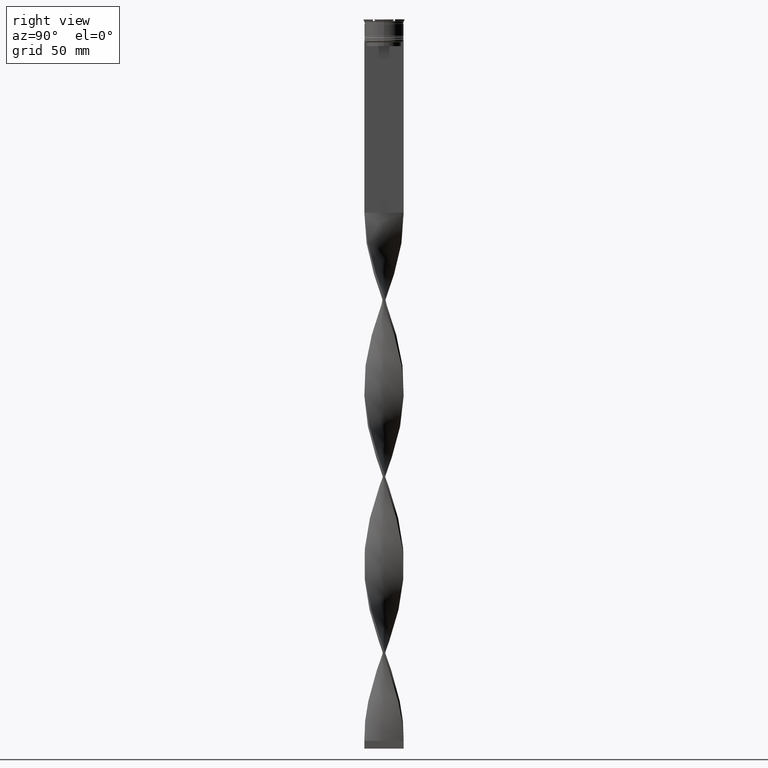
[diagram: clean part render]
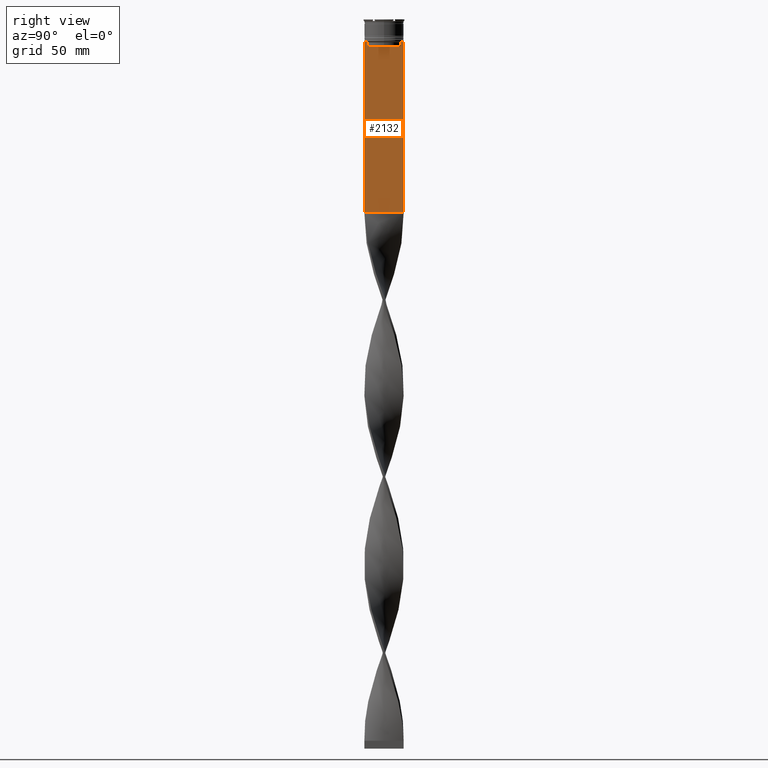
[diagram: same view with one face highlighted and labeled with its STEP entity id]
A machine part, right view. The second image highlights one B-rep face of the part: STEP entity #2132.
In plain terms, the highlighted planar face has unit normal (-1, 0, 0).
Its self-contained STEP definition (entity closure, byte-faithful):
#46 = CARTESIAN_POINT ( 'NONE',  ( 0.7500000000000002220, 12.37729776647553059, -14.00000000000000178 ) ) ;
#56 = DIRECTION ( 'NONE',  ( 0.000000000000000000, -1.000000000000000000, 0.000000000000000000 ) ) ;
#61 = VECTOR ( 'NONE', #675, 1000.000000000000000 ) ;
#79 = ORIENTED_EDGE ( 'NONE', *, *, #1677, .T. ) ;
#157 = CARTESIAN_POINT ( 'NONE',  ( 0.7500000000000002220, -11.04122051801870441, -14.33334204001847567 ) ) ;
#217 = EDGE_CURVE ( 'NONE', #3890, #3883, #2850, .T. ) ;
#251 = VERTEX_POINT ( 'NONE', #46 ) ;
#255 = CARTESIAN_POINT ( 'NONE',  ( 0.7500000000000002220, 11.04122051153452055, -14.33334204648729404 ) ) ;
#323 = EDGE_CURVE ( 'NONE', #1645, #3890, #1042, .T. ) ;
#353 = VERTEX_POINT ( 'NONE', #4059 ) ;
#374 = LINE ( 'NONE', #1735, #1950 ) ;
#425 = VERTEX_POINT ( 'NONE', #1181 ) ;
#429 = VECTOR ( 'NONE', #2139, 1000.000000000000000 ) ;
#435 = LINE ( 'NONE', #4293, #1558 ) ;
#442 = CARTESIAN_POINT ( 'NONE',  ( 0.7500000000000002220, -12.37729776647553059, -14.00000000000000178 ) ) ;
#469 = VERTEX_POINT ( 'NONE', #4037 ) ;
#654 = AXIS2_PLACEMENT_3D ( 'NONE', #2178, #3922, #3572 ) ;
#675 = DIRECTION ( 'NONE',  ( 0.000000000000000000, 0.000000000000000000, -1.000000000000000000 ) ) ;
#683 = CARTESIAN_POINT ( 'NONE',  ( 0.7500000000000002220, 10.87416663473574197, -14.50000000000000000 ) ) ;
#731 = ORIENTED_EDGE ( 'NONE', *, *, #2818, .T. ) ;
#751 = FACE_OUTER_BOUND ( 'NONE', #1650, .T. ) ;
#773 = PLANE ( 'NONE',  #654 ) ;
#778 = VERTEX_POINT ( 'NONE', #2162 ) ;
#854 = VERTEX_POINT ( 'NONE', #442 ) ;
#863 = CARTESIAN_POINT ( 'NONE',  ( 0.7500000000000002220, -11.37530219378809093, -14.00000000000000178 ) ) ;
#895 = DIRECTION ( 'NONE',  ( 0.000000000000000000, -1.000000000000000000, 0.000000000000000000 ) ) ;
#954 = CARTESIAN_POINT ( 'NONE',  ( 0.7500000000000002220, -10.87416663473574197, -14.50000000000000000 ) ) ;
#961 = EDGE_CURVE ( 'NONE', #469, #2232, #435, .T. ) ;
#987 = CARTESIAN_POINT ( 'NONE',  ( 0.7500000000000002220, 11.20826531587977648, -14.16667499681701514 ) ) ;
#1042 = LINE ( 'NONE', #4269, #429 ) ;
#1132 = LINE ( 'NONE', #3283, #3287 ) ;
#1136 = CARTESIAN_POINT ( 'NONE',  ( 0.7500000000000002220, -12.50000000000000000, -123.0000000000000000 ) ) ;
#1181 = CARTESIAN_POINT ( 'NONE',  ( 0.7500000000000002220, 10.87416663473574197, -14.50000000000000000 ) ) ;
#1225 = CARTESIAN_POINT ( 'NONE',  ( 0.7500000000000002220, -12.50000000000000000, -14.00000000000000178 ) ) ;
#1322 = ORIENTED_EDGE ( 'NONE', *, *, #4561, .T. ) ;
#1337 = LINE ( 'NONE', #1685, #61 ) ;
#1446 = LINE ( 'NONE', #3626, #1936 ) ;
#1473 = CARTESIAN_POINT ( 'NONE',  ( 0.7500000000000002220, -10.87416663473574019, -17.00000000000000000 ) ) ;
#1485 = DIRECTION ( 'NONE',  ( -0.000000000000000000, -0.000000000000000000, 1.000000000000000000 ) ) ;
#1495 = VERTEX_POINT ( 'NONE', #4554 ) ;
#1558 = VECTOR ( 'NONE', #56, 1000.000000000000000 ) ;
#1569 = CARTESIAN_POINT ( 'NONE',  ( 0.7500000000000002220, -12.50000000000000000, -123.0000000000000000 ) ) ;
#1645 = VERTEX_POINT ( 'NONE', #2492 ) ;
#1650 = EDGE_LOOP ( 'NONE', ( #2619, #1322, #1655, #2233, #2084, #3333, #79, #2522, #3981, #3578, #3658, #731 ) ) ;
#1655 = ORIENTED_EDGE ( 'NONE', *, *, #3546, .T. ) ;
#1677 = EDGE_CURVE ( 'NONE', #1495, #854, #1446, .T. ) ;
#1685 = CARTESIAN_POINT ( 'NONE',  ( 0.7500000000000002220, 10.87416663473574197, 0.000000000000000000 ) ) ;
#1735 = CARTESIAN_POINT ( 'NONE',  ( 0.7500000000000002220, -12.50000000000000000, -14.00000000000000178 ) ) ;
#1912 = VERTEX_POINT ( 'NONE', #2228 ) ;
#1936 = VECTOR ( 'NONE', #4360, 1000.000000000000000 ) ;
#1950 = VECTOR ( 'NONE', #2457, 1000.000000000000000 ) ;
#1952 = VECTOR ( 'NONE', #3435, 1000.000000000000000 ) ;
#2084 = ORIENTED_EDGE ( 'NONE', *, *, #4275, .T. ) ;
#2132 = ADVANCED_FACE ( 'NONE', ( #751 ), #773, .F. ) ;
#2139 = DIRECTION ( 'NONE',  ( 0.000000000000000000, 0.000000000000000000, -1.000000000000000000 ) ) ;
#2156 = VECTOR ( 'NONE', #4312, 1000.000000000000000 ) ;
#2162 = CARTESIAN_POINT ( 'NONE',  ( 0.7500000000000002220, 12.50000000000000000, -14.00000000000000178 ) ) ;
#2178 = CARTESIAN_POINT ( 'NONE',  ( 0.7500000000000002220, -12.50000000000000000, 11.04495957273638673 ) ) ;
#2228 = CARTESIAN_POINT ( 'NONE',  ( 0.7500000000000002220, 11.37530219378809093, -14.00000000000000178 ) ) ;
#2232 = VERTEX_POINT ( 'NONE', #1473 ) ;
#2233 = ORIENTED_EDGE ( 'NONE', *, *, #961, .T. ) ;
#2415 = LINE ( 'NONE', #4590, #3948 ) ;
#2457 = DIRECTION ( 'NONE',  ( 0.000000000000000000, -1.000000000000000000, 0.000000000000000000 ) ) ;
#2492 = CARTESIAN_POINT ( 'NONE',  ( 0.7500000000000002220, -12.50000000000000000, -14.00000000000000178 ) ) ;
#2522 = ORIENTED_EDGE ( 'NONE', *, *, #3411, .T. ) ;
#2619 = ORIENTED_EDGE ( 'NONE', *, *, #2879, .T. ) ;
#2635 = CARTESIAN_POINT ( 'NONE',  ( 0.7500000000000002220, 11.37530219378809093, -14.00000000000000178 ) ) ;
#2648 = CARTESIAN_POINT ( 'NONE',  ( 0.7500000000000002220, -11.20826532207830439, -14.16667499063191826 ) ) ;
#2818 = EDGE_CURVE ( 'NONE', #778, #251, #3118, .T. ) ;
#2850 = LINE ( 'NONE', #1136, #2156 ) ;
#2860 = DIRECTION ( 'NONE',  ( 0.000000000000000000, 0.000000000000000000, -1.000000000000000000 ) ) ;
#2879 = EDGE_CURVE ( 'NONE', #251, #1912, #374, .T. ) ;
#2906 = EDGE_CURVE ( 'NONE', #778, #3883, #2415, .T. ) ;
#3118 = LINE ( 'NONE', #1225, #4556 ) ;
#3283 = CARTESIAN_POINT ( 'NONE',  ( 0.7500000000000002220, -10.87416663473574197, 0.000000000000000000 ) ) ;
#3287 = VECTOR ( 'NONE', #1485, 1000.000000000000000 ) ;
#3333 = ORIENTED_EDGE ( 'NONE', *, *, #3385, .T. ) ;
#3385 = EDGE_CURVE ( 'NONE', #353, #1495, #3568, .T. ) ;
#3411 = EDGE_CURVE ( 'NONE', #854, #1645, #4421, .T. ) ;
#3435 = DIRECTION ( 'NONE',  ( 0.000000000000000000, -1.000000000000000000, 0.000000000000000000 ) ) ;
#3546 = EDGE_CURVE ( 'NONE', #425, #469, #1337, .T. ) ;
#3568 = B_SPLINE_CURVE_WITH_KNOTS ( 'NONE', 3,
 ( #954, #157, #2648, #863 ),
 .UNSPECIFIED., .F., .F.,
 ( 4, 4 ),
 ( 0.05009718908159448147, 0.05081156920313959630 ),
 .UNSPECIFIED. ) ;
#3572 = DIRECTION ( 'NONE',  ( 0.000000000000000000, 0.000000000000000000, 1.000000000000000000 ) ) ;
#3578 = ORIENTED_EDGE ( 'NONE', *, *, #217, .T. ) ;
#3626 = CARTESIAN_POINT ( 'NONE',  ( 0.7500000000000002220, -12.50000000000000000, -14.00000000000000178 ) ) ;
#3658 = ORIENTED_EDGE ( 'NONE', *, *, #2906, .F. ) ;
#3738 = CARTESIAN_POINT ( 'NONE',  ( 0.7500000000000002220, -12.50000000000000000, -14.00000000000000178 ) ) ;
#3883 = VERTEX_POINT ( 'NONE', #4460 ) ;
#3890 = VERTEX_POINT ( 'NONE', #1569 ) ;
#3922 = DIRECTION ( 'NONE',  ( -1.000000000000000000, 0.000000000000000000, 0.000000000000000000 ) ) ;
#3948 = VECTOR ( 'NONE', #2860, 1000.000000000000000 ) ;
#3981 = ORIENTED_EDGE ( 'NONE', *, *, #323, .T. ) ;
#4037 = CARTESIAN_POINT ( 'NONE',  ( 0.7500000000000002220, 10.87416663473574019, -17.00000000000000000 ) ) ;
#4059 = CARTESIAN_POINT ( 'NONE',  ( 0.7500000000000002220, -10.87416663473574197, -14.50000000000000000 ) ) ;
#4269 = CARTESIAN_POINT ( 'NONE',  ( 0.7500000000000002220, -12.50000000000000000, 11.04495957273638673 ) ) ;
#4275 = EDGE_CURVE ( 'NONE', #2232, #353, #1132, .T. ) ;
#4293 = CARTESIAN_POINT ( 'NONE',  ( 0.7500000000000002220, 10.90000000000000213, -17.00000000000000000 ) ) ;
#4312 = DIRECTION ( 'NONE',  ( 0.000000000000000000, 1.000000000000000000, 0.000000000000000000 ) ) ;
#4360 = DIRECTION ( 'NONE',  ( 0.000000000000000000, -1.000000000000000000, 0.000000000000000000 ) ) ;
#4421 = LINE ( 'NONE', #3738, #1952 ) ;
#4460 = CARTESIAN_POINT ( 'NONE',  ( 0.7500000000000002220, 12.50000000000000000, -123.0000000000000000 ) ) ;
#4554 = CARTESIAN_POINT ( 'NONE',  ( 0.7500000000000002220, -11.37530219378809093, -14.00000000000000178 ) ) ;
#4556 = VECTOR ( 'NONE', #895, 1000.000000000000000 ) ;
#4561 = EDGE_CURVE ( 'NONE', #1912, #425, #4592, .T. ) ;
#4590 = CARTESIAN_POINT ( 'NONE',  ( 0.7500000000000002220, 12.50000000000000000, 11.04495957273638673 ) ) ;
#4592 = B_SPLINE_CURVE_WITH_KNOTS ( 'NONE', 3,
 ( #2635, #987, #255, #683 ),
 .UNSPECIFIED., .F., .F.,
 ( 4, 4 ),
 ( 0.01936090553552769281, 0.02006881572333104116 ),
 .UNSPECIFIED. ) ;